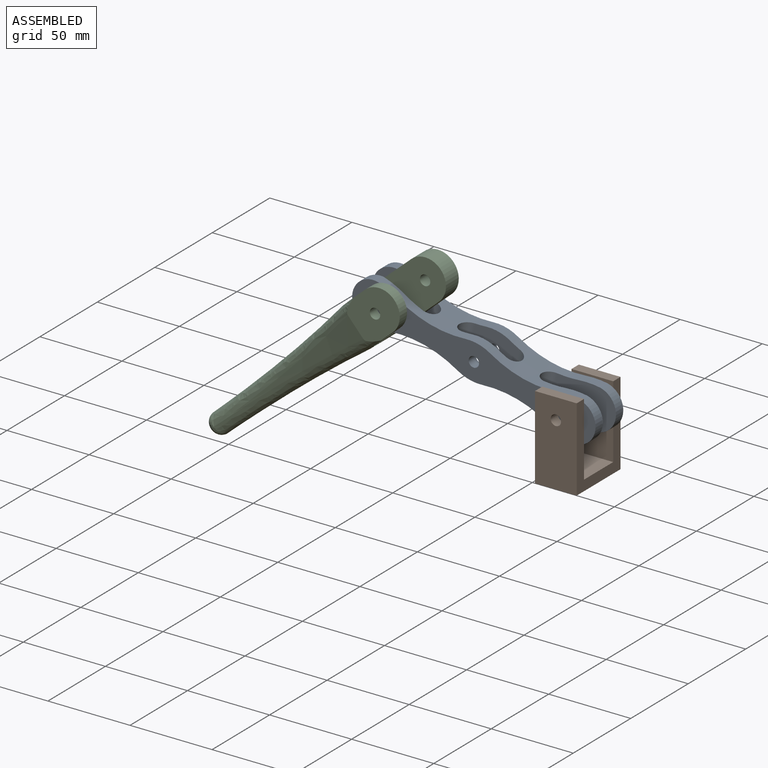
[diagram: assembled view]
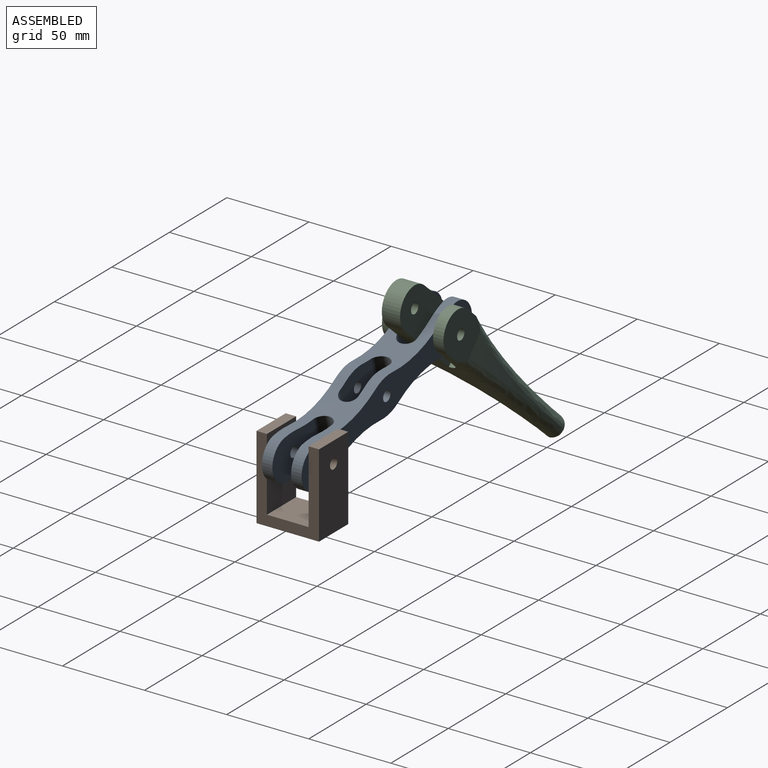
[diagram: assembled view, second angle]
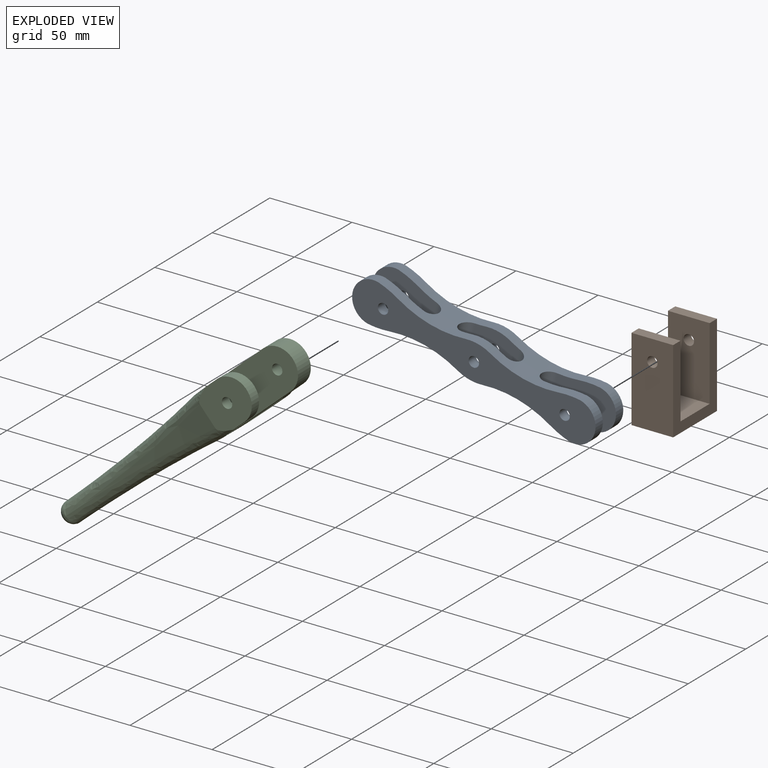
[diagram: exploded view]
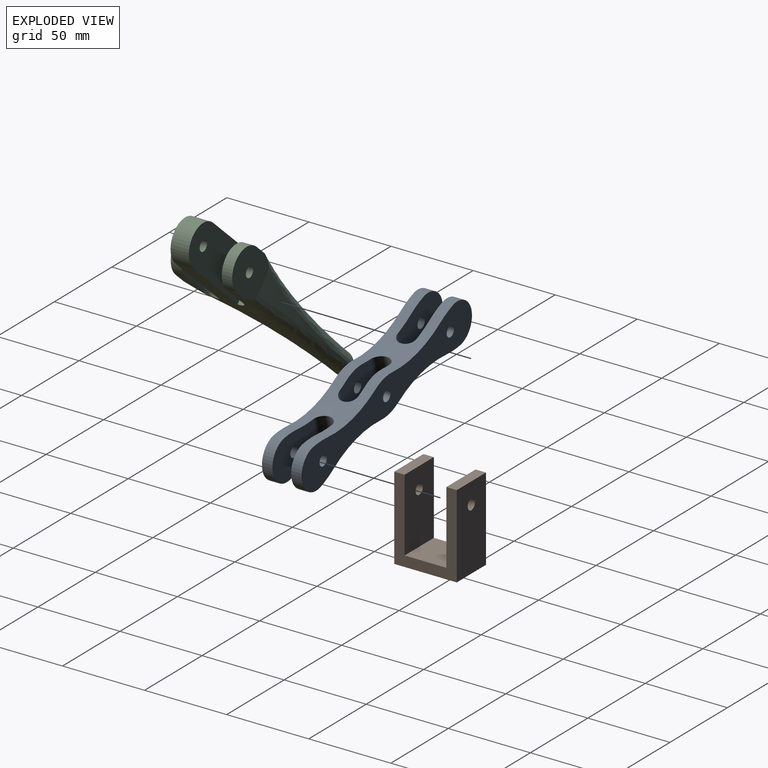
[diagram: exploded view, second angle]
ASSEMBLY  parts=3 mates=2
PART A: 38 faces, bbox 25.4x24.1x152.4 mm
  f0: plane 152.4x25.4mm, normal (0,1,0), area 2624mm2, adj f12,f16,f17,f18,f19,f22,f23,f24
  f1: plane 152.4x25.4mm, normal (0,-1,0), area 2624mm2, adj f13,f14,f15,f20,f21,f22,f23,f24
  f2: plane 27.94x21.71mm, normal (0,1,0), area 510mm2, adj f7,f11,f13,f22,f23,f24,f25,f26
  f3: plane 27.94x21.71mm, normal (0,-1,0), area 510mm2, adj f7,f11,f12,f22,f23,f24,f25,f27
  f4: plane 38.1x25.4mm, normal (0,-1,0), area 730.8mm2, adj f5,f16,f18,f24,f25,f35,f36
  f5: cylinder r=5.71mm len=14.05mm, axis (-1,0,0), area 238.1mm2, adj f4,f6,f24,f25
  f6: plane 38.1x25.4mm, normal (0,1,0), area 730.8mm2, adj f5,f15,f21,f24,f25,f30,f31
  f7: cylinder r=5.71mm len=15.9mm, axis (-1,0,0), area 261.1mm2, adj f2,f3,f24,f25
  f8: plane 38.1x25.4mm, normal (0,1,0), area 730.8mm2, adj f9,f14,f20,f22,f23,f32,f33
  f9: cylinder r=5.71mm len=14.05mm, axis (-1,0,0), area 238.1mm2, adj f8,f10,f22,f23
  f10: plane 38.1x25.4mm, normal (0,-1,0), area 730.8mm2, adj f9,f17,f19,f22,f23,f34,f37
  f11: cylinder r=5.71mm len=15.9mm, axis (-1,0,0), area 261.1mm2, adj f2,f3,f22,f23
  f12: cylinder r=3.17mm len=6.35mm, axis (0,-1,0), area 126.7mm2, adj f0,f3
  f13: cylinder r=3.17mm len=6.35mm, axis (0,-1,0), area 126.7mm2, adj f1,f2
  f14: cylinder r=3.17mm len=6.35mm, axis (0,-1,0), area 126.7mm2, adj f1,f8
  f15: cylinder r=3.17mm len=6.35mm, axis (0,-1,0), area 126.7mm2, adj f1,f6
  f16: cylinder r=3.17mm len=6.35mm, axis (0,-1,0), area 126.7mm2, adj f0,f4
  f17: cylinder r=3.17mm len=6.35mm, axis (0,-1,0), area 126.7mm2, adj f0,f10
  f18: cylinder r=12.7mm len=25.4mm, axis (0,-1,0), area 253.4mm2, adj f0,f4,f35,f36
  f19: cylinder r=12.7mm len=25.4mm, axis (0,1,0), area 253.4mm2, adj f0,f10,f34,f37
  f20: cylinder r=12.7mm len=25.4mm, axis (0,1,0), area 253.4mm2, adj f1,f8,f32,f33
  f21: cylinder r=12.7mm len=25.4mm, axis (0,-1,0), area 253.4mm2, adj f1,f6,f30,f31
  f22: cylinder r=67.47mm len=42.79mm, axis (0,-1,0), area 726.7mm2, adj f0,f1,f2,f3,f8,f9,f10,f11
  f23: cylinder r=67.47mm len=42.79mm, axis (0,-1,0), area 726.8mm2, adj f0,f1,f2,f3,f8,f9,f10,f11
  f24: cylinder r=67.47mm len=42.79mm, axis (0,-1,0), area 726.8mm2, adj f0,f1,f2,f3,f4,f5,f6,f7
  f25: cylinder r=67.47mm len=42.79mm, axis (0,-1,0), area 726.7mm2, adj f0,f1,f2,f3,f4,f5,f6,f7
  f26: cylinder r=25.4mm len=15.63mm, axis (0,-1,0), area 100.9mm2, adj f1,f2,f22,f24
  f27: cylinder r=25.4mm len=15.63mm, axis (0,-1,0), area 100.9mm2, adj f0,f3,f22,f24
  f28: cylinder r=25.4mm len=15.63mm, axis (0,-1,0), area 100.9mm2, adj f1,f2,f23,f25
  f29: cylinder r=25.4mm len=15.63mm, axis (0,-1,0), area 100.9mm2, adj f0,f3,f23,f25
  f30: cylinder r=50.8mm len=12.89mm, axis (0,-1,0), area 83.8mm2, adj f1,f6,f21,f24
  f31: cylinder r=50.8mm len=12.89mm, axis (0,-1,0), area 83.8mm2, adj f1,f6,f21,f25
  f32: cylinder r=50.8mm len=12.89mm, axis (0,-1,0), area 83.8mm2, adj f1,f8,f20,f23
  f33: cylinder r=50.8mm len=12.89mm, axis (0,-1,0), area 83.8mm2, adj f1,f8,f20,f22
  f34: cylinder r=50.8mm len=12.89mm, axis (0,-1,0), area 83.8mm2, adj f0,f10,f19,f22
  f35: cylinder r=50.8mm len=12.89mm, axis (0,-1,0), area 83.8mm2, adj f0,f4,f18,f24
  f36: cylinder r=50.8mm len=12.89mm, axis (0,-1,0), area 83.8mm2, adj f0,f4,f18,f25
  f37: cylinder r=50.8mm len=12.89mm, axis (0,-1,0), area 83.8mm2, adj f0,f10,f19,f23
PART B: 12 faces, bbox 25.4x38.1x50.8 mm
  f0: plane 44.45x25.4mm, normal (0,-1,0), area 1097.4mm2, adj f1,f7,f8,f9,f10
  f1: plane 25.4x25.4mm, normal (0,0,1), area 645.2mm2, adj f0,f2,f8,f9
  f2: plane 44.45x25.4mm, normal (0,1,0), area 1097.4mm2, adj f1,f3,f8,f9,f11
  f3: plane 25.4x6.35mm, normal (0,0,1), area 161.3mm2, adj f2,f4,f8,f9
  f4: plane 50.8x25.4mm, normal (0,-1,0), area 1258.7mm2, adj f3,f5,f8,f9,f11
  f5: plane 38.1x25.4mm, normal (0,0,-1), area 967.7mm2, adj f4,f6,f8,f9
  f6: plane 50.8x25.4mm, normal (0,1,0), area 1258.7mm2, adj f5,f7,f8,f9,f10
  f7: plane 25.4x6.35mm, normal (0,0,1), area 161.3mm2, adj f0,f6,f8,f9
  f8: plane 50.8x38.1mm, normal (1,0,0), area 806.4mm2, adj f0,f1,f2,f3,f4,f5,f6,f7
  f9: plane 50.8x38.1mm, normal (-1,0,0), area 806.4mm2, adj f0,f1,f2,f3,f4,f5,f6,f7
  f10: cylinder r=3.17mm len=6.35mm, axis (0,-1,0), area 126.7mm2, adj f0,f6
  f11: cylinder r=3.17mm len=6.35mm, axis (0,-1,0), area 126.7mm2, adj f2,f4
PART C: 36 faces, bbox 203.4x50.9x35.1 mm
  f0: plane 2.03x0.99mm, normal (-1,0,0), area 1.4mm2, adj f30,f31,f32,f33,f34,f35
  f1: cylinder r=681.37mm len=128.31mm, axis (0,0,1), area 642.5mm2, adj f11,f27,f29,f34
  f2: plane 63.98x25.4mm, normal (0,-1,0), area 1492.4mm2, adj f6,f9,f13,f20,f21,f25
  f3: plane 63.98x25.4mm, normal (0,1,0), area 1492.4mm2, adj f6,f9,f14,f20,f21,f25
  f4: cylinder r=681.37mm len=128.31mm, axis (0,0,1), area 642.5mm2, adj f16,f26,f28,f31
  f5: plane 28.06x15.36mm, normal (0,0,-1), area 124.6mm2, adj f14,f15,f16,f17,f24,f26
  f6: plane 51.28x11.11mm, normal (0,0,-1), area 569.8mm2, adj f2,f3,f17,f25
  f7: plane 28.06x15.36mm, normal (0,0,-1), area 124.6mm2, adj f11,f12,f13,f17,f23,f27
  f8: plane 28.06x15.36mm, normal (0,0,1), area 124.6mm2, adj f14,f15,f16,f18,f24,f28
  f9: plane 51.28x11.11mm, normal (0,0,1), area 569.8mm2, adj f2,f3,f18,f25
  f10: plane 28.06x15.36mm, normal (0,0,1), area 124.6mm2, adj f11,f12,f13,f18,f23,f29
  f11: plane 33.89x27.54mm, normal (0,-1,0), area 669.3mm2, adj f1,f7,f10,f22,f23,f27,f29
  f12: plane 31.75x25.4mm, normal (0,1,0), area 705.6mm2, adj f7,f10,f13,f22,f23
  f13: cylinder r=6.83mm len=25.4mm, axis (0,0,1), area 272.4mm2, adj f2,f7,f10,f12
  f14: cylinder r=6.83mm len=25.4mm, axis (0,0,1), area 272.4mm2, adj f3,f5,f8,f15
  f15: plane 31.75x25.4mm, normal (0,-1,0), area 705.6mm2, adj f5,f8,f14,f19,f24
  f16: plane 33.89x27.54mm, normal (0,1,0), area 669.3mm2, adj f4,f5,f8,f19,f24,f26,f28
  f17: cylinder r=1263.67mm len=93.66mm, axis (0,-1,0), area 1038.6mm2, adj f5,f6,f7,f26,f27
  f18: cylinder r=1263.67mm len=93.66mm, axis (0,-1,0), area 1038.6mm2, adj f8,f9,f10,f28,f29
  f19: cylinder r=3.17mm len=6.35mm, axis (0,-1,0), area 126.7mm2, adj f15,f16
  f20: cylinder r=3.17mm len=11.11mm, axis (0,-1,0), area 221.7mm2, adj f2,f3
  f21: cylinder r=3.17mm len=11.11mm, axis (0,-1,0), area 221.7mm2, adj f2,f3
  f22: cylinder r=3.17mm len=6.35mm, axis (0,-1,0), area 126.7mm2, adj f11,f12
  f23: cylinder r=12.7mm len=25.4mm, axis (0,-1,0), area 253.4mm2, adj f7,f10,f11,f12
  f24: cylinder r=12.7mm len=25.4mm, axis (0,-1,0), area 253.4mm2, adj f5,f8,f15,f16
  f25: cylinder r=12.7mm len=25.4mm, axis (0,-1,0), area 443.4mm2, adj f2,f3,f6,f9
  f26: bspline ~170.47x25.17mm, area 1305.9mm2, adj f4,f5,f16,f17,f27,f33
  f27: bspline ~170.47x25.17mm, area 1305.9mm2, adj f1,f7,f11,f17,f26,f35
  f28: bspline ~170.47x25.17mm, area 1305.9mm2, adj f4,f8,f16,f18,f29,f30
  f29: bspline ~170.47x25.17mm, area 1305.9mm2, adj f1,f10,f11,f18,f28,f32
  f30: bspline ~7.25x6.37mm, area 49.9mm2, adj f0,f28,f31,f32
  f31: cylinder r=5.08mm len=5.08mm, axis (0,0,1), area 0.2mm2, adj f0,f4,f30,f33
  f32: bspline ~7.25x6.37mm, area 49.9mm2, adj f0,f29,f30,f34
  f33: bspline ~7.25x6.37mm, area 49.9mm2, adj f0,f26,f31,f35
  f34: cylinder r=5.08mm len=5.08mm, axis (0,0,1), area 0.2mm2, adj f0,f1,f32,f35
  f35: bspline ~7.25x6.37mm, area 49.9mm2, adj f0,f27,f33,f34
PLACE A rot(axis=(0,-1,0),75.4deg) t=(43.29,0.64,13.83)mm
PLACE B at identity fixed
PLACE C rot(axis=(0,-1,0),41.8deg) t=(-1.33,0.32,-58.59)mm
MATE revolute C.f19 <-> A.f14  axis (0,-1,0) through (-97.9,12.7,63.75)mm
MATE revolute A.f15 <-> B.f10  axis (0,1,0) through (12.7,12.7,34.92)mm
